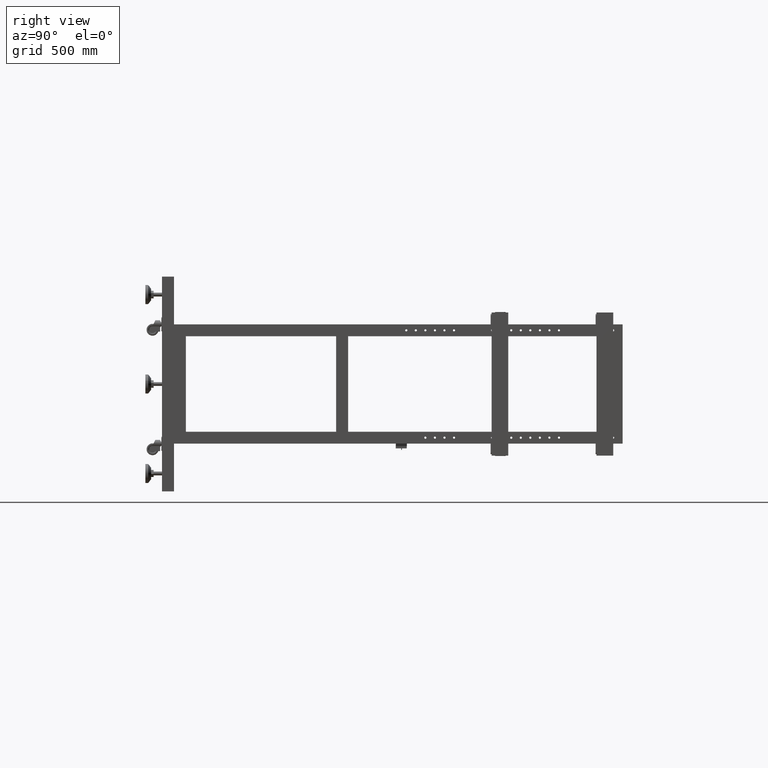
[diagram: clean part render]
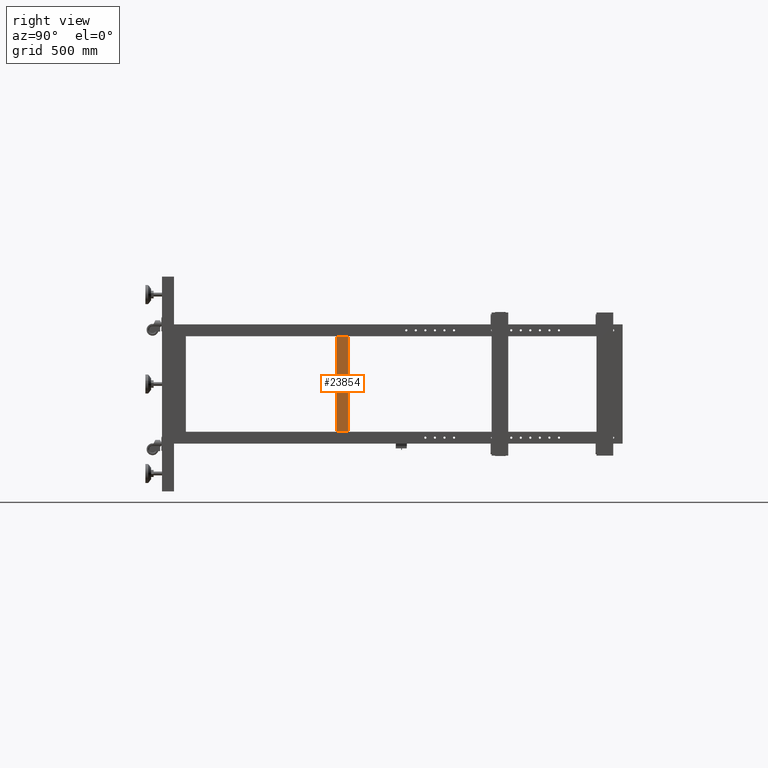
[diagram: same view with one face highlighted and labeled with its STEP entity id]
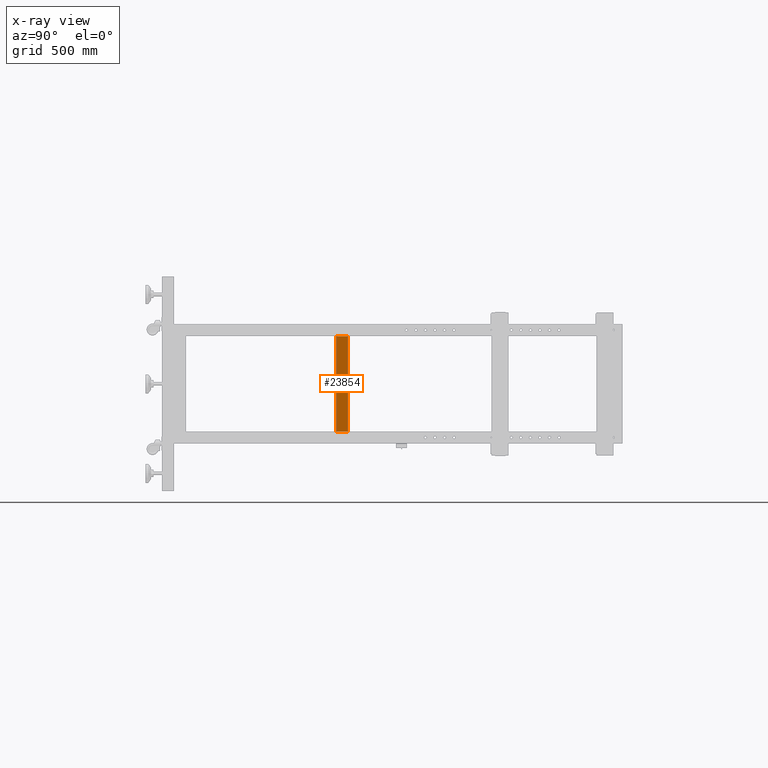
[diagram: x-ray of the same camera — body ghosted, the highlighted face saturated]
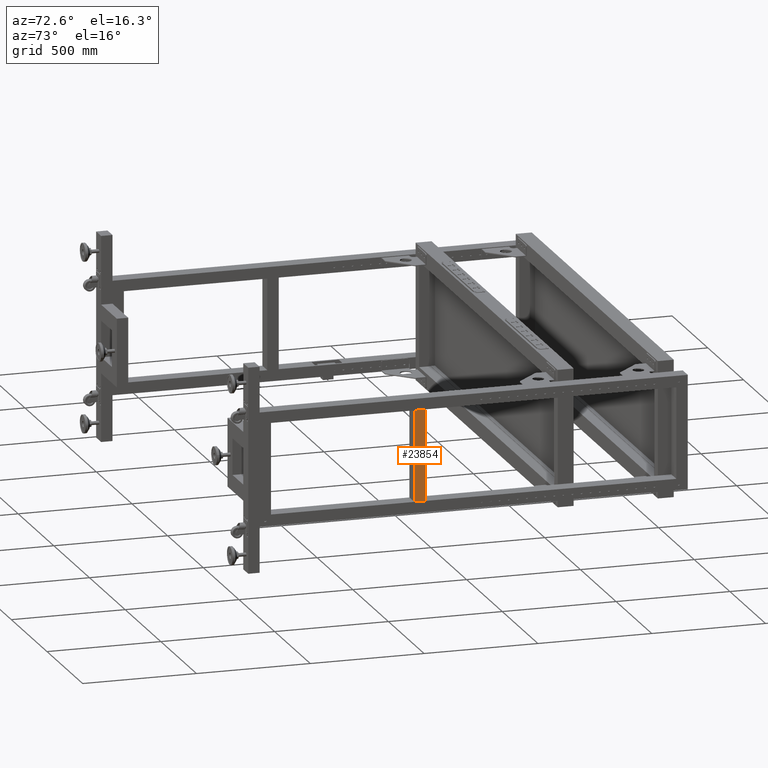
[diagram: same view with one face highlighted and labeled with its STEP entity id]
A machine part, right view. The second image highlights one B-rep face of the part: STEP entity #23854.
The next image is the same camera in x-ray: the body ghosted, the highlighted face saturated — about 0% of this face is hidden behind the body in this view.
A second angle (auxiliary view) of the same face is appended — the face is thin or edge-on in the first view.
In plain terms, the highlighted planar face has unit normal (-1, 0, 0).
Its self-contained STEP definition (entity closure, byte-faithful):
#2267 = VECTOR ( 'NONE', #59954, 1000.000000000000000 ) ;
#2329 = VECTOR ( 'NONE', #13248, 1000.000000000000000 ) ;
#4411 = ORIENTED_EDGE ( 'NONE', *, *, #56858, .T. ) ;
#9979 = FACE_OUTER_BOUND ( 'NONE', #49012, .T. ) ;
#10751 = EDGE_CURVE ( 'NONE', #57662, #28802, #22709, .T. ) ;
#12201 = CARTESIAN_POINT ( 'NONE',  ( 793.8275125628151727, -164.5589195979876536, -200.0000000000000000 ) ) ;
#13248 = DIRECTION ( 'NONE',  ( -1.219458437746274471E-17, -1.000000000000000000, 0.000000000000000000 ) ) ;
#16561 = CARTESIAN_POINT ( 'NONE',  ( 793.8275125628151727, -164.5589195979876536, 200.0000000000000000 ) ) ;
#17296 = DIRECTION ( 'NONE',  ( 1.219458437746274471E-17, 1.000000000000000000, 0.000000000000000000 ) ) ;
#17769 = DIRECTION ( 'NONE',  ( -0.000000000000000000, 0.000000000000000000, -1.000000000000000000 ) ) ;
#20972 = CARTESIAN_POINT ( 'NONE',  ( 793.8275125628151727, -164.5589195979876536, 200.0000000000000000 ) ) ;
#22653 = PLANE ( 'NONE',  #23694 ) ;
#22709 = LINE ( 'NONE', #42743, #2267 ) ;
#23694 = AXIS2_PLACEMENT_3D ( 'NONE', #78326, #66027, #17296 ) ;
#23854 = ADVANCED_FACE ( 'NONE', ( #9979 ), #22653, .F. ) ;
#28802 = VERTEX_POINT ( 'NONE', #61189 ) ;
#32111 = LINE ( 'NONE', #20972, #2329 ) ;
#37188 = DIRECTION ( 'NONE',  ( -1.219458437746274471E-17, -1.000000000000000000, 0.000000000000000000 ) ) ;
#42379 = CARTESIAN_POINT ( 'NONE',  ( 793.8275125628151727, -164.5589195979876536, -200.0000000000000000 ) ) ;
#42556 = ORIENTED_EDGE ( 'NONE', *, *, #42882, .F. ) ;
#42743 = CARTESIAN_POINT ( 'NONE',  ( 793.8275125628151727, -114.5589195979876393, 200.0000000000000000 ) ) ;
#42882 = EDGE_CURVE ( 'NONE', #28802, #70897, #55601, .T. ) ;
#43077 = ORIENTED_EDGE ( 'NONE', *, *, #10751, .F. ) ;
#49012 = EDGE_LOOP ( 'NONE', ( #42556, #43077, #62580, #4411 ) ) ;
#50660 = VECTOR ( 'NONE', #17769, 1000.000000000000000 ) ;
#55601 = LINE ( 'NONE', #12201, #60280 ) ;
#56858 = EDGE_CURVE ( 'NONE', #79179, #70897, #80027, .T. ) ;
#57662 = VERTEX_POINT ( 'NONE', #76747 ) ;
#59954 = DIRECTION ( 'NONE',  ( -0.000000000000000000, 0.000000000000000000, -1.000000000000000000 ) ) ;
#60280 = VECTOR ( 'NONE', #37188, 1000.000000000000000 ) ;
#61189 = CARTESIAN_POINT ( 'NONE',  ( 793.8275125628151727, -114.5589195979876393, -200.0000000000000000 ) ) ;
#62580 = ORIENTED_EDGE ( 'NONE', *, *, #75333, .T. ) ;
#66027 = DIRECTION ( 'NONE',  ( -1.000000000000000000, 1.219458437746274471E-17, 0.000000000000000000 ) ) ;
#70897 = VERTEX_POINT ( 'NONE', #42379 ) ;
#75333 = EDGE_CURVE ( 'NONE', #57662, #79179, #32111, .T. ) ;
#76747 = CARTESIAN_POINT ( 'NONE',  ( 793.8275125628151727, -114.5589195979876393, 200.0000000000000000 ) ) ;
#77905 = CARTESIAN_POINT ( 'NONE',  ( 793.8275125628151727, -164.5589195979876536, 200.0000000000000000 ) ) ;
#78326 = CARTESIAN_POINT ( 'NONE',  ( 793.8275125628151727, -164.5589195979876536, 200.0000000000000000 ) ) ;
#79179 = VERTEX_POINT ( 'NONE', #77905 ) ;
#80027 = LINE ( 'NONE', #16561, #50660 ) ;